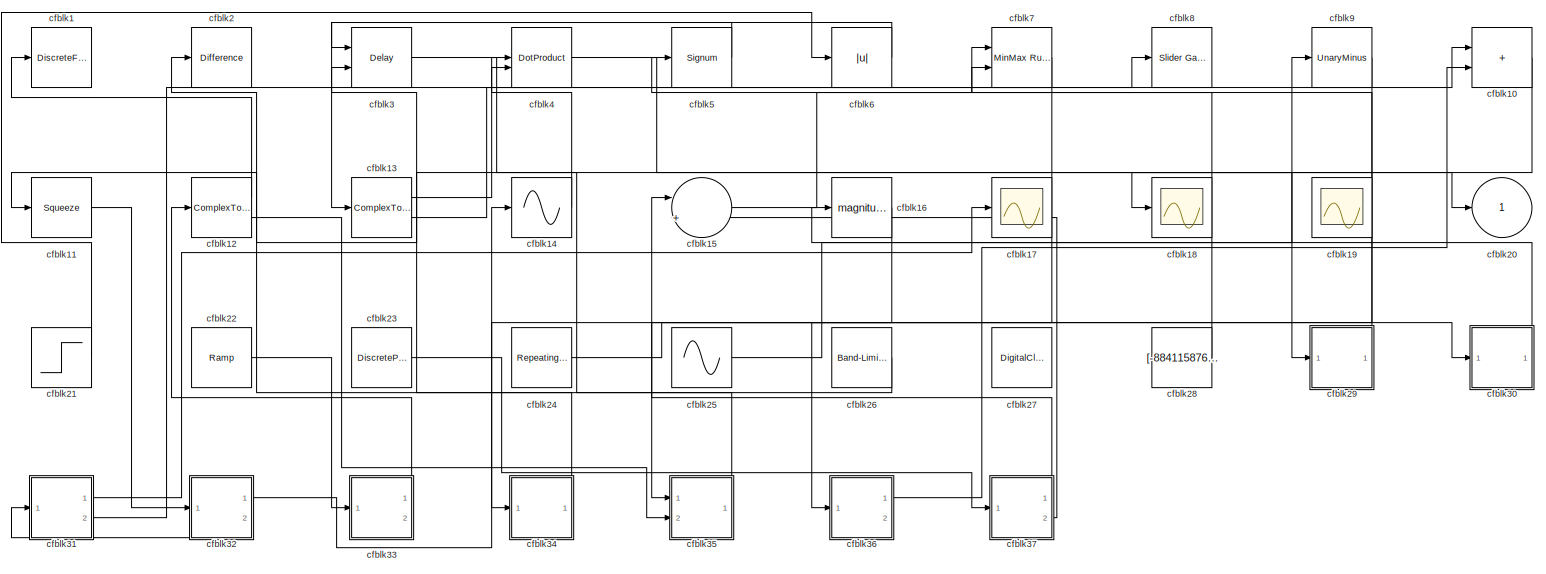
[diagram: root canvas - part 1/1, most of the canvas]
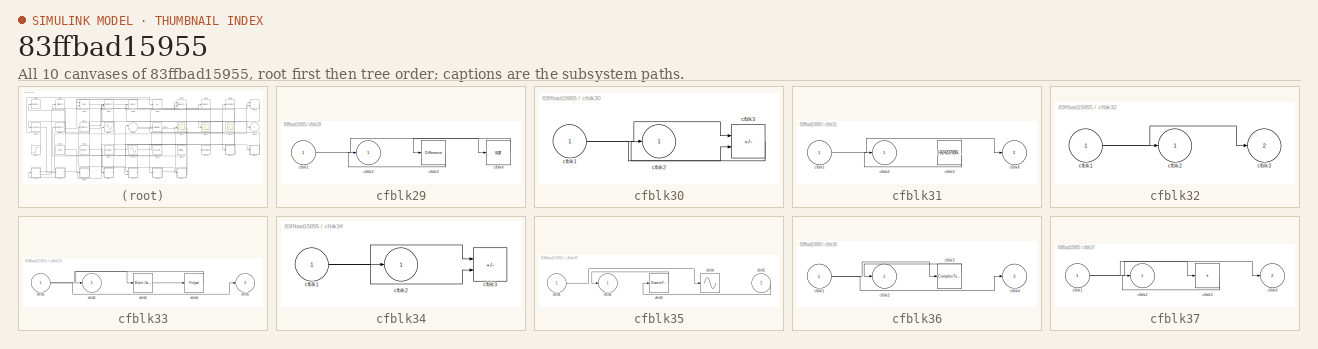
[diagram: thumbnail index - all 10 canvases of the model, root first then tree order]
MODEL slx_83ffbad15955
KIND model
CONFIG AbsTol = auto
CONFIG EnableMultiTasking = off
CONFIG FixedStep = auto
CONFIG MaxStep = auto
CONFIG MinStep = auto
CONFIG RelTol = 1e-3
CONFIG SampleTimeConstraint = Unconstrained
CONFIG SolverName = VariableStepAuto
CONFIG StartTime = 0.0
CONFIG StopTime = 10.0
BLOCK [DiscreteFir] cfblk1
  InputPortMap = u0
  OutputPortMap = o0
  Ports = [1, 1]
  SampleTime = 1
BLOCK [Sum] cfblk10
  IconShape = rectangular
  Ports = [2, 1]
BLOCK [Squeeze] cfblk11
BLOCK [ComplexToRealImag] cfblk12
  Ports = [1, 2]
BLOCK [ComplexToRealImag] cfblk13
  Ports = [1, 2]
BLOCK [Sin] cfblk14
  Ports = [1, 1]
  SampleTime = 0
  TimeSource = Use external signal
BLOCK [Sum] cfblk15
  Inputs = |++
  Ports = [2, 1]
BLOCK [Math] cfblk16
  Operator = magnitude^2
  Ports = [1, 1]
BLOCK [Scope] cfblk17
  Floating = off
  NumInputPorts = 1
  Ports = [1]
BLOCK [Scope] cfblk18
  Floating = off
  NumInputPorts = 1
  Ports = [1]
BLOCK [Scope] cfblk19
  Floating = on
  NumInputPorts = 1
  Ports = []
BLOCK [Reference] cfblk2  REF=simulink/Discrete/Difference
  Ports = [1, 1]
  SourceBlock = simulink/Discrete/Difference
  SourceProductBaseCode = SL
  SourceType = Difference
BLOCK [Outport] cfblk20
BLOCK [Step] cfblk21
  After = [406808043.448474]
  Before = [818983502.483932]
  SampleTime = 0
  Time = [42.000000]
BLOCK [Reference] cfblk22  REF=simulink/Sources/Ramp
  Ports = [0, 1]
  SourceBlock = simulink/Sources/Ramp
  SourceProductBaseCode = SL
  SourceType = Ramp
BLOCK [DiscretePulseGenerator] cfblk23
  Amplitude = [324430703.930867]
  Period = [32077429.850267]
  PhaseDelay = [1.000000]
  Ports = [0, 1]
  PulseType = Time based
  PulseWidth = 5
BLOCK [Reference] cfblk24  REF=simulink/Sources/Repeating
Sequence
  Ports = [0, 1]
  SourceBlock = simulink/Sources/Repeating\nSequence
  SourceProductBaseCode = SL
  SourceType = Repeating table
BLOCK [Sin] cfblk25
  Amplitude = [-915052577.829016]
  Bias = [110707701.179518]
  Ports = [0, 1]
  SampleTime = 0
BLOCK [Reference] cfblk26  REF=simulink/Sources/Band-Limited
White Noise
  Ports = [0, 1]
  SourceBlock = simulink/Sources/Band-Limited\nWhite Noise
  SourceProductBaseCode = SL
  SourceType = Band-Limited White Noise.
BLOCK [DigitalClock] cfblk27
BLOCK [Constant] cfblk28
  SampleTime = 1
  Value = [-884115876.829475]
BLOCK [SubSystem] cfblk29
  Ports = [1, 1]
  RequestExecContextInheritance = off
BLOCK [Inport] cfblk29/cfblk1
BLOCK [Outport] cfblk29/cfblk2
BLOCK [Reference] cfblk29/cfblk3  REF=simulink/Discrete/Difference
  Ports = [1, 1]
  SourceBlock = simulink/Discrete/Difference
  SourceProductBaseCode = SL
  SourceType = Difference
BLOCK [Sqrt] cfblk29/cfblk4
BLOCK [Delay] cfblk3
  InputPortMap = u0,e6
  Ports = [2, 1]
  SampleTime = 1
  ShowEnablePort = on
BLOCK [SubSystem] cfblk30
  Ports = [1, 1]
  RequestExecContextInheritance = off
BLOCK [Inport] cfblk30/cfblk1
BLOCK [Outport] cfblk30/cfblk2
BLOCK [Sum] cfblk30/cfblk3
  IconShape = rectangular
  Inputs = +-
  Ports = [2, 1]
BLOCK [SubSystem] cfblk31
  Ports = [1, 2]
  RequestExecContextInheritance = off
BLOCK [Inport] cfblk31/cfblk1
BLOCK [Outport] cfblk31/cfblk2
BLOCK [Constant] cfblk31/cfblk3
  SampleTime = 1
  Value = [-924207689.678745]
BLOCK [Outport] cfblk31/cfblk4
  Port = 2
BLOCK [SubSystem] cfblk32
  Ports = [1, 2]
  RequestExecContextInheritance = off
BLOCK [Inport] cfblk32/cfblk1
BLOCK [Outport] cfblk32/cfblk2
BLOCK [Outport] cfblk32/cfblk3
  Port = 2
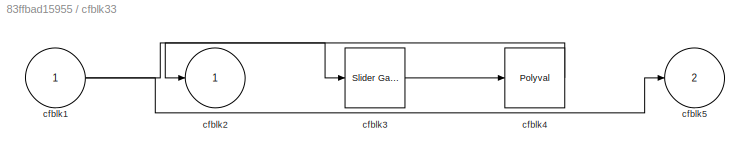
BLOCK [SubSystem] cfblk33
  Ports = [1, 2]
  RequestExecContextInheritance = off
BLOCK [Inport] cfblk33/cfblk1
BLOCK [Outport] cfblk33/cfblk2
BLOCK [Reference] cfblk33/cfblk3  REF=simulink/Math
Operations/Slider
Gain
  Ports = [1, 1]
  SourceBlock = simulink/Math\nOperations/Slider\nGain
  SourceProductBaseCode = SL
  SourceType = Slider Gain
BLOCK [Polyval] cfblk33/cfblk4
  Coefs = [ +2.081618890e-019, -1.441693666e-014, +4.719686976e-010, -8.536869453e-006, +1.621573104e-001, -8.087801117e+001 ]
BLOCK [Outport] cfblk33/cfblk5
  Port = 2
BLOCK [SubSystem] cfblk34
  Ports = [1, 1]
  RequestExecContextInheritance = off
BLOCK [Inport] cfblk34/cfblk1
BLOCK [Outport] cfblk34/cfblk2
BLOCK [Sum] cfblk34/cfblk3
  IconShape = rectangular
  Inputs = +-
  Ports = [2, 1]
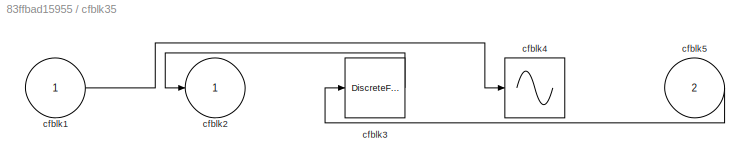
BLOCK [SubSystem] cfblk35
  Ports = [2, 1]
  RequestExecContextInheritance = off
BLOCK [Inport] cfblk35/cfblk1
BLOCK [Outport] cfblk35/cfblk2
BLOCK [DiscreteFilter] cfblk35/cfblk3
  InputPortMap = u0
  Ports = [1, 1]
  SampleTime = 1
BLOCK [Sin] cfblk35/cfblk4
  Ports = [1, 1]
  SampleTime = 0
  TimeSource = Use external signal
BLOCK [Inport] cfblk35/cfblk5
  Port = 2
BLOCK [SubSystem] cfblk36
  Ports = [1, 2]
  RequestExecContextInheritance = off
BLOCK [Inport] cfblk36/cfblk1
BLOCK [Outport] cfblk36/cfblk2
BLOCK [ComplexToMagnitudeAngle] cfblk36/cfblk3
  Ports = [1, 2]
BLOCK [Outport] cfblk36/cfblk4
  Port = 2
BLOCK [SubSystem] cfblk37
  Ports = [1, 2]
  RequestExecContextInheritance = off
BLOCK [Inport] cfblk37/cfblk1
BLOCK [Outport] cfblk37/cfblk2
BLOCK [Sum] cfblk37/cfblk3
  IconShape = rectangular
  Inputs = +
  Ports = [1, 1]
BLOCK [Outport] cfblk37/cfblk4
  Port = 2
BLOCK [DotProduct] cfblk4
  OutDataTypeStr = Inherit: Inherit via internal rule
BLOCK [Signum] cfblk5
BLOCK [Abs] cfblk6
  SaturateOnIntegerOverflow = off
BLOCK [Reference] cfblk7  REF=simulink/Math
Operations/MinMax
Running
Resettable
  Ports = [2, 1]
  SourceBlock = simulink/Math\nOperations/MinMax\nRunning\nResettable
  SourceProductBaseCode = SL
  SourceType = MinMax Running Resettable
BLOCK [Reference] cfblk8  REF=simulink/Math
Operations/Slider
Gain
  Ports = [1, 1]
  SourceBlock = simulink/Math\nOperations/Slider\nGain
  SourceProductBaseCode = SL
  SourceType = Slider Gain
BLOCK [UnaryMinus] cfblk9
LINE cfblk10:1 -> cfblk18:1
LINE cfblk11:1 -> cfblk32:1
LINE cfblk12:1 -> cfblk1:1
LINE cfblk12:2 -> cfblk35:2
LINE cfblk13:1 -> cfblk4:1
LINE cfblk13:2 -> cfblk10:1
LINE cfblk14:1 -> cfblk4:2
LINE cfblk15:1 -> cfblk7:1
LINE cfblk16:1 -> cfblk34:1
LINE cfblk21:1 -> cfblk6:1
LINE cfblk22:1 -> cfblk33:1
LINE cfblk23:1 -> cfblk37:1
LINE cfblk24:1 -> cfblk30:1
LINE cfblk25:1 -> cfblk9:1
LINE cfblk26:1 -> cfblk11:1
LINE cfblk28:1 -> cfblk5:1
LINE cfblk29/cfblk1:1 -> cfblk29/cfblk4:1
LINE cfblk29/cfblk3:1 -> cfblk29/cfblk2:1
LINE cfblk29/cfblk4:1 -> cfblk29/cfblk3:1
LINE cfblk29:1 -> cfblk7:2
NET cfblk30/cfblk1:1 -> cfblk30/cfblk3:1, cfblk30/cfblk3:2
LINE cfblk30/cfblk3:1 -> cfblk30/cfblk2:1
LINE cfblk30:1 -> cfblk16:1
LINE cfblk31/cfblk1:1 -> cfblk31/cfblk4:1
LINE cfblk31/cfblk3:1 -> cfblk31/cfblk2:1
LINE cfblk31:1 -> cfblk17:1
LINE cfblk31:2 -> cfblk8:1
NET cfblk32/cfblk1:1 -> cfblk32/cfblk2:1, cfblk32/cfblk3:1
LINE cfblk32:1 -> cfblk14:1
LINE cfblk32:2 -> cfblk31:1
NET cfblk33/cfblk1:1 -> cfblk33/cfblk3:1, cfblk33/cfblk5:1
LINE cfblk33/cfblk3:1 -> cfblk33/cfblk4:1
LINE cfblk33/cfblk4:1 -> cfblk33/cfblk2:1
LINE cfblk33:1 -> cfblk12:1
NET cfblk34/cfblk1:1 -> cfblk34/cfblk2:1, cfblk34/cfblk3:1, cfblk34/cfblk3:2
LINE cfblk34:1 -> cfblk2:1
LINE cfblk35/cfblk1:1 -> cfblk35/cfblk4:1
LINE cfblk35/cfblk3:1 -> cfblk35/cfblk2:1
LINE cfblk35/cfblk5:1 -> cfblk35/cfblk3:1
LINE cfblk35:1 -> cfblk3:2
NET cfblk36/cfblk1:1 -> cfblk36/cfblk3:1, cfblk36/cfblk4:1
LINE cfblk36/cfblk3:1 -> cfblk36/cfblk2:1
LINE cfblk36:1 -> cfblk10:2
NET cfblk37/cfblk1:1 -> cfblk37/cfblk3:1, cfblk37/cfblk4:1
LINE cfblk37/cfblk3:1 -> cfblk37/cfblk2:1
LINE cfblk37:1 -> cfblk15:1
LINE cfblk37:2 -> cfblk15:2
LINE cfblk3:1 -> cfblk29:1
LINE cfblk4:1 -> cfblk20:1
LINE cfblk5:1 -> cfblk13:1
LINE cfblk6:1 -> cfblk3:1
LINE cfblk7:1 -> cfblk36:1
LINE cfblk9:1 -> cfblk35:1
note: NET lines group one-source signal fan-out (src -> all destinations, sorted); 1:1 wires keep LINE
